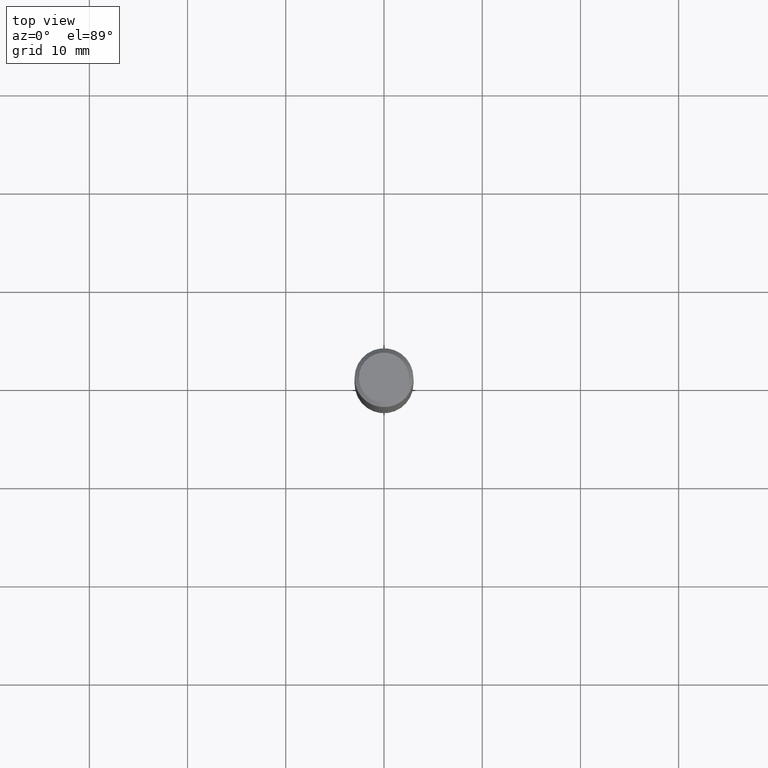
[diagram: clean part render]
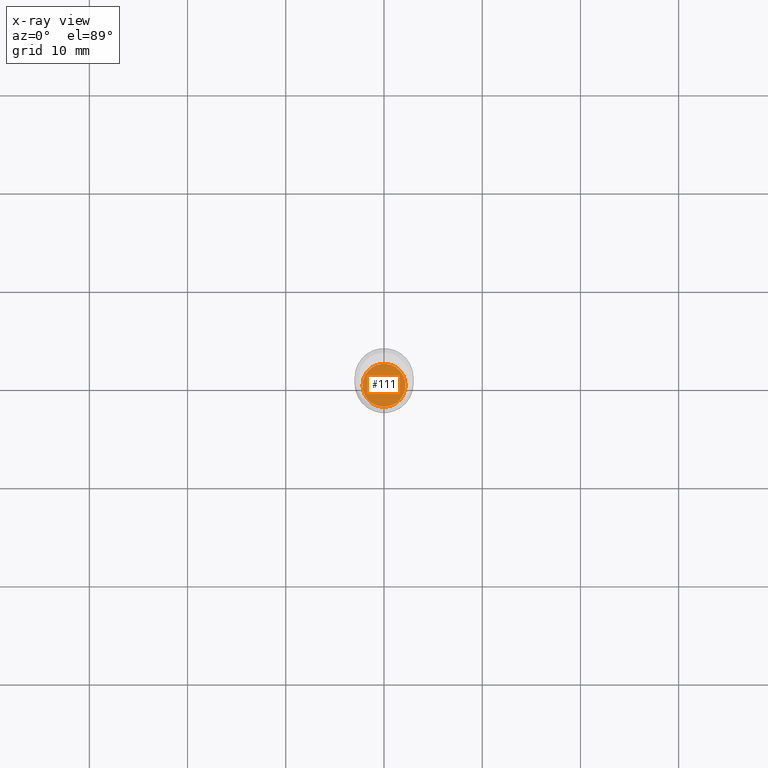
[diagram: x-ray — body ghosted, one internal face saturated and labeled with its STEP entity id]
A machine part, top view, then the same camera in x-ray: the body is ghosted and one INTERNAL B-rep face — a face not visible from any outside direction — is saturated and labeled: STEP entity #111.
In plain terms, the highlighted planar face has unit normal (-0, 0, 1).
Its self-contained STEP definition (entity closure, byte-faithful):
#7 = CARTESIAN_POINT ( 'NONE',  ( 0.08609999999999996823, -6.785693982041650218E-15, -1.771299999999999653 ) ) ;
#17 = CARTESIAN_POINT ( 'NONE',  ( 4.331658896395732410E-29, -6.184460895492863090E-15, -1.771299999999999653 ) ) ;
#18 = EDGE_CURVE ( 'NONE', #145, #410, #46, .T. ) ;
#46 = CIRCLE ( 'NONE', #314, 0.08609999999999996823 ) ;
#47 = DIRECTION ( 'NONE',  ( 1.000000000000000000, -6.982962677686264344E-15, 0.000000000000000000 ) ) ;
#49 = EDGE_CURVE ( 'NONE', #410, #145, #404, .T. ) ;
#54 = DIRECTION ( 'NONE',  ( 1.000000000000000000, -6.982962677686264344E-15, 0.000000000000000000 ) ) ;
#70 = ORIENTED_EDGE ( 'NONE', *, *, #18, .F. ) ;
#111 = ADVANCED_FACE ( 'NONE', ( #237 ), #208, .F. ) ;
#145 = VERTEX_POINT ( 'NONE', #360 ) ;
#208 = PLANE ( 'NONE',  #353 ) ;
#227 = DIRECTION ( 'NONE',  ( -2.445468806185136597E-29, 3.491481338843145583E-15, 1.000000000000000000 ) ) ;
#231 = DIRECTION ( 'NONE',  ( -2.438088387897960049E-29, 3.491481338843145188E-15, 1.000000000000000000 ) ) ;
#237 = FACE_OUTER_BOUND ( 'NONE', #296, .T. ) ;
#296 = EDGE_LOOP ( 'NONE', ( #464, #70 ) ) ;
#314 = AXIS2_PLACEMENT_3D ( 'NONE', #432, #227, #47 ) ;
#352 = DIRECTION ( 'NONE',  ( -2.445468806185136597E-29, 3.491481338843145583E-15, 1.000000000000000000 ) ) ;
#353 = AXIS2_PLACEMENT_3D ( 'NONE', #17, #231, #403 ) ;
#360 = CARTESIAN_POINT ( 'NONE',  ( -0.08609999999999996823, -5.570034372829306742E-15, -1.771299999999999653 ) ) ;
#385 = AXIS2_PLACEMENT_3D ( 'NONE', #446, #352, #54 ) ;
#403 = DIRECTION ( 'NONE',  ( 1.000000000000000000, -6.982962677686265922E-15, 4.876176775795935793E-29 ) ) ;
#404 = CIRCLE ( 'NONE', #385, 0.08609999999999996823 ) ;
#410 = VERTEX_POINT ( 'NONE', #7 ) ;
#432 = CARTESIAN_POINT ( 'NONE',  ( 4.331658896395732410E-29, -6.184460895492863090E-15, -1.771299999999999653 ) ) ;
#446 = CARTESIAN_POINT ( 'NONE',  ( 4.331658896395732410E-29, -6.184460895492863090E-15, -1.771299999999999653 ) ) ;
#464 = ORIENTED_EDGE ( 'NONE', *, *, #49, .F. ) ;